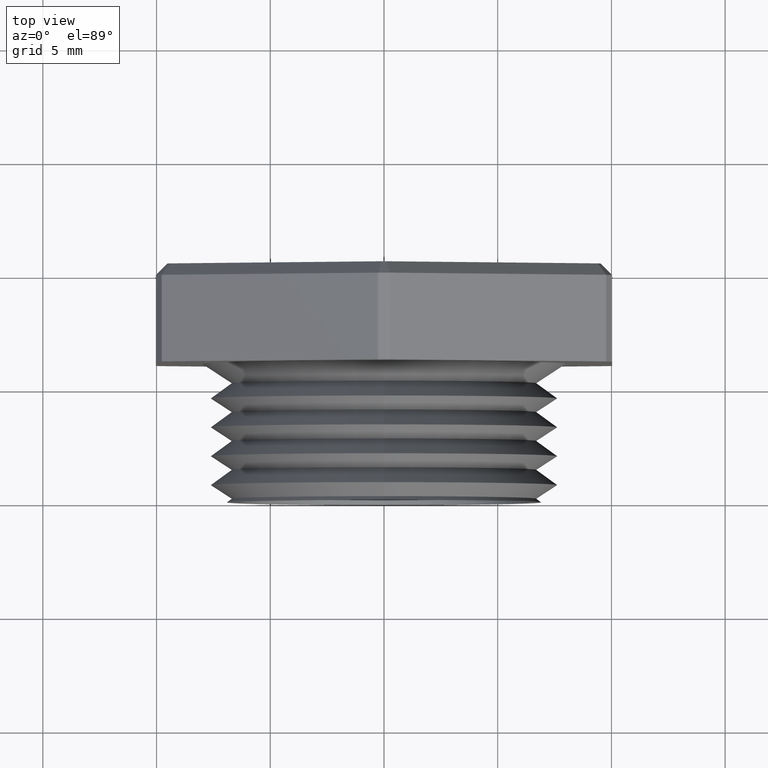
[diagram: clean part render]
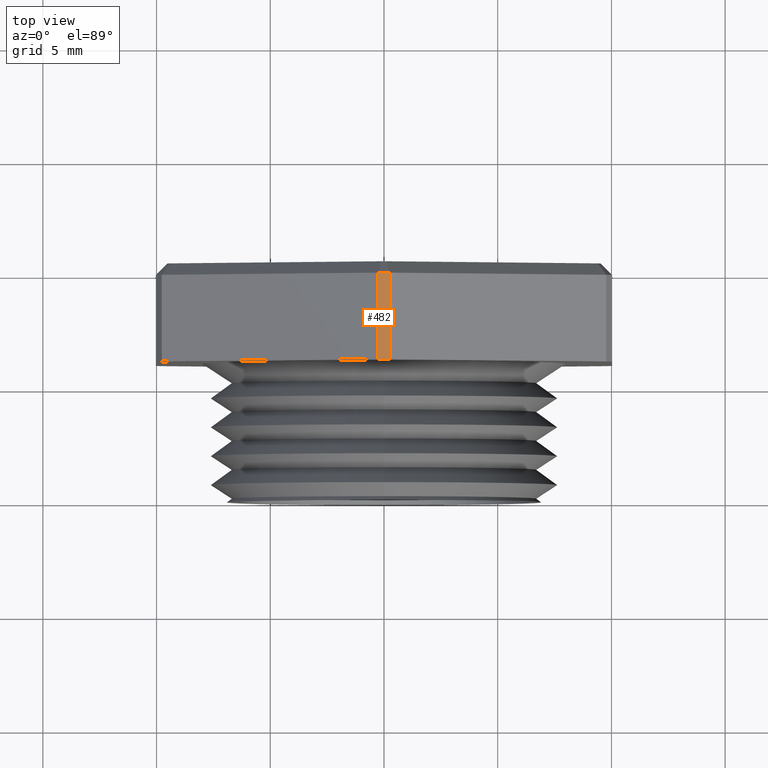
[diagram: same view with one face highlighted and labeled with its STEP entity id]
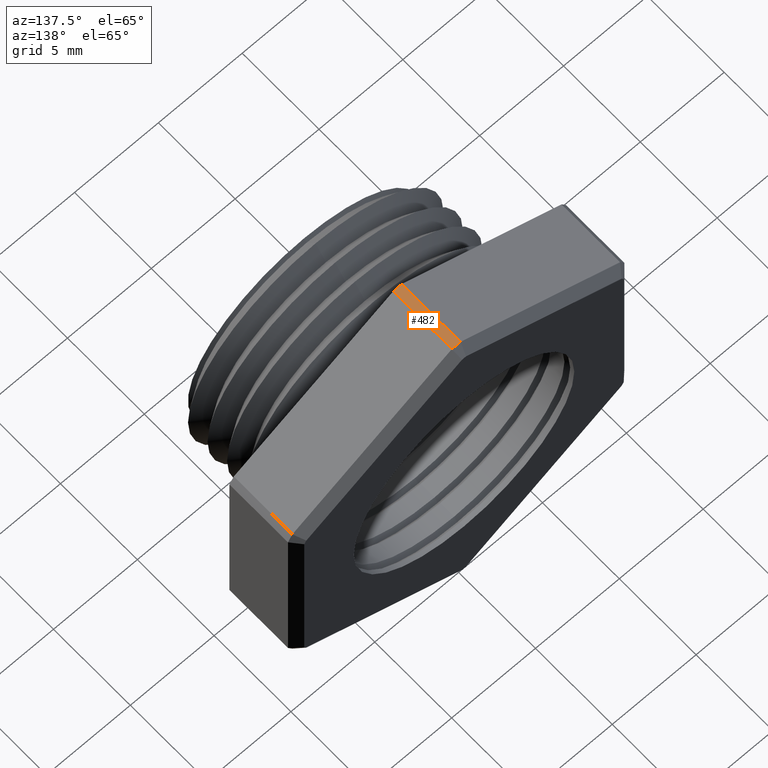
[diagram: same view with one face highlighted and labeled with its STEP entity id]
A machine part, top view. The second image highlights one B-rep face of the part: STEP entity #482.
A second angle (auxiliary view) of the same face is appended — the face is thin or edge-on in the first view.
In plain terms, the highlighted cylindrical surface (partial cylindrical patch) has radius 11.4376 mm, axis along (-0, -1, -0).
Its self-contained STEP definition (entity closure, byte-faithful):
#369 = VERTEX_POINT ( 'NONE', #1523 ) ;
#413 = EDGE_CURVE ( 'NONE', #369, #414, #1633, .T. ) ;
#414 = VERTEX_POINT ( 'NONE', #1628 ) ;
#482 = ADVANCED_FACE ( 'NONE', ( #1744 ), #1743, .T. ) ;
#483 = EDGE_LOOP ( 'NONE', ( #486, #489, #538, #540 ) ) ;
#486 = ORIENTED_EDGE ( 'NONE', *, *, #487, .T. ) ;
#487 = EDGE_CURVE ( 'NONE', #369, #488, #1788, .T. ) ;
#488 = VERTEX_POINT ( 'NONE', #1784 ) ;
#489 = ORIENTED_EDGE ( 'NONE', *, *, #490, .T. ) ;
#490 = EDGE_CURVE ( 'NONE', #488, #491, #1783, .T. ) ;
#491 = VERTEX_POINT ( 'NONE', #1778 ) ;
#538 = ORIENTED_EDGE ( 'NONE', *, *, #539, .T. ) ;
#539 = EDGE_CURVE ( 'NONE', #491, #414, #1888, .T. ) ;
#540 = ORIENTED_EDGE ( 'NONE', *, *, #413, .F. ) ;
#1523 = CARTESIAN_POINT ( 'NONE',  ( 0.01026000026703756900, 0.2375548905829479600, 0.4501830987437446800 ) ) ;
#1628 = CARTESIAN_POINT ( 'NONE',  ( -0.01026000026703704200, 0.2375548905829479600, 0.4501830987437449600 ) ) ;
#1629 = DIRECTION ( 'NONE',  ( 0.0000000000000000000, 0.0000000000000000000, -1.000000000000000000 ) ) ;
#1630 = DIRECTION ( 'NONE',  ( -0.0000000000000000000, -1.000000000000000000, -0.0000000000000000000 ) ) ;
#1631 = CARTESIAN_POINT ( 'NONE',  ( 0.0000000000000000000, 0.2375548905829479600, 0.0000000000000000000 ) ) ;
#1632 = AXIS2_PLACEMENT_3D ( 'NONE', #1631, #1630, #1629 ) ;
#1633 = CIRCLE ( 'NONE', #1632, 0.4502999999999999800 ) ;
#1739 = DIRECTION ( 'NONE',  ( 0.0000000000000000000, 0.0000000000000000000, -1.000000000000000000 ) ) ;
#1740 = DIRECTION ( 'NONE',  ( -0.0000000000000000000, -1.000000000000000000, -0.0000000000000000000 ) ) ;
#1741 = CARTESIAN_POINT ( 'NONE',  ( 0.0000000000000000000, 0.0000000000000000000, 0.0000000000000000000 ) ) ;
#1742 = AXIS2_PLACEMENT_3D ( 'NONE', #1741, #1740, #1739 ) ;
#1743 = CYLINDRICAL_SURFACE ( 'NONE', #1742, 0.4502999999999999800 ) ;
#1744 = FACE_OUTER_BOUND ( 'NONE', #483, .T. ) ;
#1778 = CARTESIAN_POINT ( 'NONE',  ( -0.01026000026703699000, 0.3875548905829478400, 0.4501830987437449000 ) ) ;
#1779 = DIRECTION ( 'NONE',  ( 0.0000000000000000000, 0.0000000000000000000, 1.000000000000000000 ) ) ;
#1780 = DIRECTION ( 'NONE',  ( -0.0000000000000000000, -1.000000000000000000, -0.0000000000000000000 ) ) ;
#1781 = CARTESIAN_POINT ( 'NONE',  ( 0.0000000000000000000, 0.3875548905829478400, 0.0000000000000000000 ) ) ;
#1782 = AXIS2_PLACEMENT_3D ( 'NONE', #1781, #1780, #1779 ) ;
#1783 = CIRCLE ( 'NONE', #1782, 0.4502999999999999800 ) ;
#1784 = CARTESIAN_POINT ( 'NONE',  ( 0.01026000026703756900, 0.3875548905829478400, 0.4501830987437449000 ) ) ;
#1785 = DIRECTION ( 'NONE',  ( 0.0000000000000000000, 1.000000000000000000, 0.0000000000000000000 ) ) ;
#1786 = VECTOR ( 'NONE', #1785, 39.37007874015748100 ) ;
#1787 = CARTESIAN_POINT ( 'NONE',  ( 0.01026000026703756900, 0.0000000000000000000, 0.4501830987437449000 ) ) ;
#1788 = LINE ( 'NONE', #1787, #1786 ) ;
#1885 = DIRECTION ( 'NONE',  ( -0.0000000000000000000, -1.000000000000000000, -0.0000000000000000000 ) ) ;
#1886 = VECTOR ( 'NONE', #1885, 39.37007874015748100 ) ;
#1887 = CARTESIAN_POINT ( 'NONE',  ( -0.01026000026703699000, 0.0000000000000000000, 0.4501830987437449000 ) ) ;
#1888 = LINE ( 'NONE', #1887, #1886 ) ;